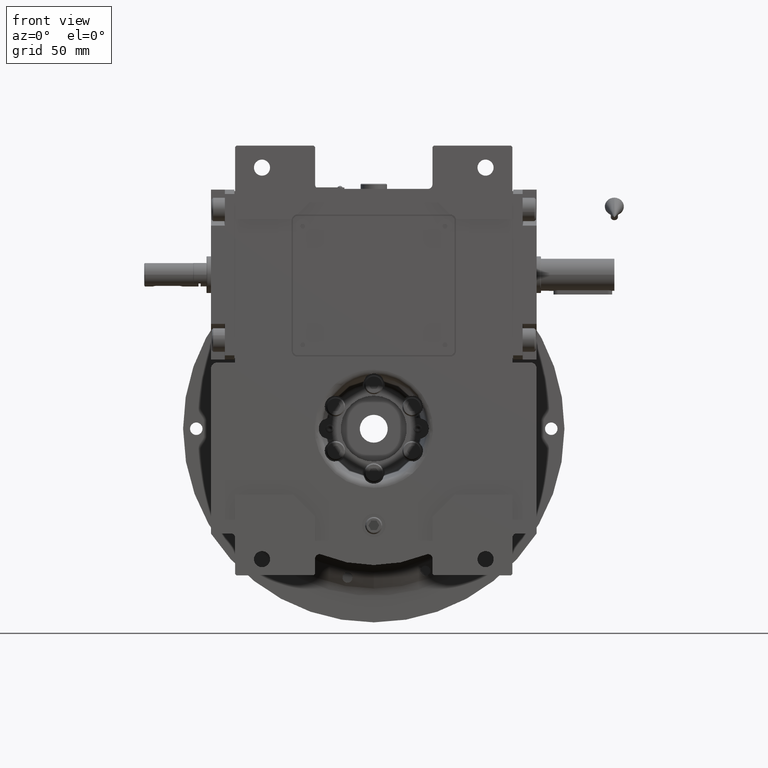
[diagram: clean part render]
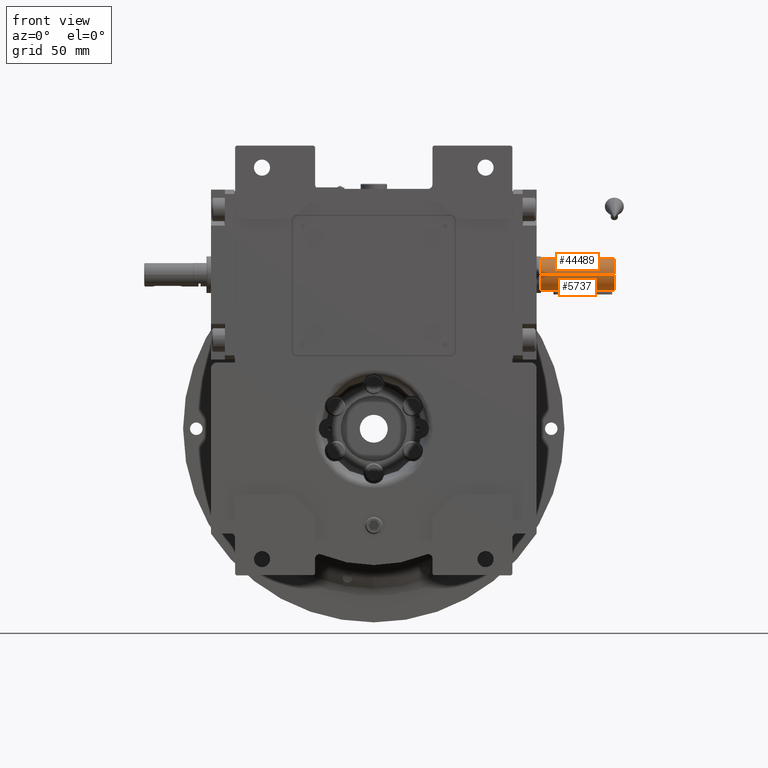
[diagram: same view with one multi-face feature highlighted, each face labeled with its STEP entity id]
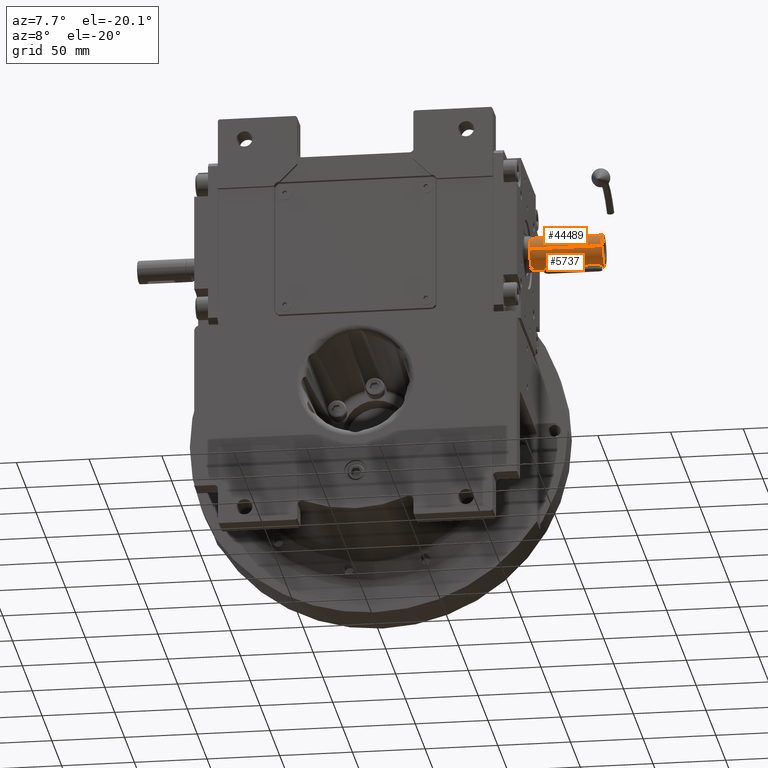
[diagram: same view with one multi-face feature highlighted, each face labeled with its STEP entity id]
A machine part, front view. The highlighted faces form ONE feature: a constant-radius fillet chain: 2 tangent blend faces with common blend radius 11 mm. The faces share edges in the B-rep.
A second angle (auxiliary view) of the same feature is appended — it is thin or edge-on in the first view.
Their STEP definitions:
[1] entity #44489 (Cylinder):
#2298 = DIRECTION ( 'NONE',  ( -1.000000000000000000, 0.000000000000000000, 0.000000000000000000 ) ) ;
#6589 = EDGE_LOOP ( 'NONE', ( #70838, #58478, #31209, #7061 ) ) ;
#7061 = ORIENTED_EDGE ( 'NONE', *, *, #19861, .T. ) ;
#7897 = CIRCLE ( 'NONE', #35294, 11.00000000000000000 ) ;
#8014 = VERTEX_POINT ( 'NONE', #32978 ) ;
#8196 = VERTEX_POINT ( 'NONE', #51825 ) ;
#8727 = CARTESIAN_POINT ( 'NONE',  ( 0.000000000000000000, -68.00000000000000000, 0.000000000000000000 ) ) ;
#10367 = DIRECTION ( 'NONE',  ( 0.000000000000000000, 1.000000000000000000, 0.000000000000000000 ) ) ;
#13191 = LINE ( 'NONE', #46834, #14872 ) ;
#14872 = VECTOR ( 'NONE', #19628, 1000.000000000000000 ) ;
#19628 = DIRECTION ( 'NONE',  ( 0.000000000000000000, -1.000000000000000000, 0.000000000000000000 ) ) ;
#19861 = EDGE_CURVE ( 'NONE', #21761, #8014, #23266, .T. ) ;
#21566 = CARTESIAN_POINT ( 'NONE',  ( -11.00000000000000000, -118.0000000000000000, 4.490371596873629988E-16 ) ) ;
#21761 = VERTEX_POINT ( 'NONE', #68394 ) ;
#22031 = CARTESIAN_POINT ( 'NONE',  ( -11.00000000000000000, -68.00000000000000000, 1.347111479062089982E-15 ) ) ;
#23266 = CIRCLE ( 'NONE', #55247, 11.00000000000000000 ) ;
#24516 = DIRECTION ( 'NONE',  ( 0.000000000000000000, -1.000000000000000000, 0.000000000000000000 ) ) ;
#25845 = AXIS2_PLACEMENT_3D ( 'NONE', #54060, #10367, #70553 ) ;
#27496 = VECTOR ( 'NONE', #50279, 1000.000000000000000 ) ;
#28107 = LINE ( 'NONE', #22031, #27496 ) ;
#31209 = ORIENTED_EDGE ( 'NONE', *, *, #40186, .F. ) ;
#32978 = CARTESIAN_POINT ( 'NONE',  ( 11.00000000000000000, -68.00000000000000000, 0.000000000000000000 ) ) ;
#34838 = VERTEX_POINT ( 'NONE', #21566 ) ;
#35294 = AXIS2_PLACEMENT_3D ( 'NONE', #40132, #62369, #45890 ) ;
#38267 = CYLINDRICAL_SURFACE ( 'NONE', #25845, 11.00000000000000000 ) ;
#40132 = CARTESIAN_POINT ( 'NONE',  ( 0.000000000000000000, -118.0000000000000000, 8.881784197001250351E-16 ) ) ;
#40186 = EDGE_CURVE ( 'NONE', #21761, #34838, #28107, .T. ) ;
#44489 = ADVANCED_FACE ( 'NONE', ( #53712 ), #38267, .T. ) ;
#45890 = DIRECTION ( 'NONE',  ( -1.000000000000000000, 0.000000000000000000, -8.074349270001138700E-17 ) ) ;
#46834 = CARTESIAN_POINT ( 'NONE',  ( 11.00000000000000000, -68.00000000000000000, 0.000000000000000000 ) ) ;
#48082 = EDGE_CURVE ( 'NONE', #34838, #8196, #7897, .T. ) ;
#50279 = DIRECTION ( 'NONE',  ( 0.000000000000000000, -1.000000000000000000, 0.000000000000000000 ) ) ;
#51825 = CARTESIAN_POINT ( 'NONE',  ( 11.00000000000000000, -118.0000000000000000, 0.000000000000000000 ) ) ;
#53712 = FACE_OUTER_BOUND ( 'NONE', #6589, .T. ) ;
#54060 = CARTESIAN_POINT ( 'NONE',  ( 0.000000000000000000, -68.00000000000000000, 0.000000000000000000 ) ) ;
#55247 = AXIS2_PLACEMENT_3D ( 'NONE', #8727, #24516, #2298 ) ;
#58478 = ORIENTED_EDGE ( 'NONE', *, *, #48082, .F. ) ;
#62369 = DIRECTION ( 'NONE',  ( 0.000000000000000000, -1.000000000000000000, 0.000000000000000000 ) ) ;
#66887 = EDGE_CURVE ( 'NONE', #8014, #8196, #13191, .T. ) ;
#68394 = CARTESIAN_POINT ( 'NONE',  ( -11.00000000000000000, -68.00000000000000000, 4.490371596873629988E-16 ) ) ;
#70553 = DIRECTION ( 'NONE',  ( 1.000000000000000000, 0.000000000000000000, 0.000000000000000000 ) ) ;
#70838 = ORIENTED_EDGE ( 'NONE', *, *, #66887, .T. ) ;
[2] entity #5737 (Cylinder):
#127 = CARTESIAN_POINT ( 'NONE',  ( -0.9835476433819195785, -76.66500159928875746, 10.95606724537883636 ) ) ;
#476 = CARTESIAN_POINT ( 'NONE',  ( 1.286031796418980910, -76.78935861155122211, 10.92437284017435317 ) ) ;
#624 = CARTESIAN_POINT ( 'NONE',  ( -2.167336347001988628, -115.5745317129838838, 10.78446060510429305 ) ) ;
#743 = EDGE_CURVE ( 'NONE', #34228, #50664, #47740, .T. ) ;
#823 = CARTESIAN_POINT ( 'NONE',  ( -2.759871036972559200, -78.32389248760773626, 10.64795842999698827 ) ) ;
#973 = CARTESIAN_POINT ( 'NONE',  ( -2.775339673019965314, -114.6390896219054980, 10.64392870139577063 ) ) ;
#1364 = EDGE_CURVE ( 'NONE', #23653, #34228, #51916, .T. ) ;
#2530 = CARTESIAN_POINT ( 'NONE',  ( 1.279005597977053377, -116.2172074953522980, 10.92607964090107586 ) ) ;
#2726 = CARTESIAN_POINT ( 'NONE',  ( -1.433641077008202869, -116.1365963392273812, 10.90581970676121415 ) ) ;
#3083 = CARTESIAN_POINT ( 'NONE',  ( -1.157453054966482764, -116.2677326878750250, 10.93890081082993326 ) ) ;
#3600 = CARTESIAN_POINT ( 'NONE',  ( 0.9111339967346910873, -116.3587381832188186, 10.96220668040095880 ) ) ;
#4396 = ORIENTED_EDGE ( 'NONE', *, *, #66887, .F. ) ;
#4435 = CARTESIAN_POINT ( 'NONE',  ( -1.429970842532874986, -76.85548033673214263, 10.90719156782525445 ) ) ;
#4580 = B_SPLINE_CURVE_WITH_KNOTS ( 'NONE', 3,
 ( #48483, #26289, #5152, #48126, #58884, #20915, #43104, #70346, #37000, #42739, #27686, #66024, #60293, #9811, #37707, #10507, #11216, #21289, #10870, #31664, #64615, #49515, #54214, #65313, #53856, #59585, #65666, #476, #27002, #54903, #43802, #5501, #15889, #48833, #22335, #70700, #54561, #59944, #32360, #64973, #38412, #127, #53509, #21635, #32009, #15550, #43452, #10158, #4435, #69984, #16230, #16595, #37362, #32717, #59241, #38051, #4783, #26642, #27345, #49175, #21973, #33060, #5840, #44165, #11908, #823, #16942, #50567, #17997, #6877, #33747, #18346 ),
 .UNSPECIFIED., .F., .F.,
 ( 4, 2, 2, 1, 1, 1, 2, 2, 2, 2, 2, 2, 2, 2, 2, 2, 1, 1, 2, 2, 2, 2, 2, 1, 1, 1, 2, 2, 2, 2, 2, 2, 2, 2, 2, 2, 1, 1, 2, 2, 4 ),
 ( 0.000000000000000000, 0.06250000000004843348, 0.09375000000007266410, 0.1093750000000847794, 0.1171875000000887485, 0.1210937500000907607, 0.1230468750000917599, 0.1250000000000927591, 0.1875000000000968392, 0.2187500000001006972, 0.2343750000001040279, 0.2421875000001056377, 0.2500000000001072475, 0.3125000000001200151, 0.3437500000001252887, 0.3593750000001278977, 0.3671875000001280642, 0.3710937500001281752, 0.3730468750001282863, 0.3750000000001283418, 0.5000000000001070255, 0.5625000000000963674, 0.5937500000000905942, 0.6093750000000877076, 0.6171875000000870415, 0.6210937500000873746, 0.6230468750000875966, 0.6250000000000877076, 0.6875000000000607292, 0.7187500000000471845, 0.7343750000000404121, 0.7421875000000381917, 0.7500000000000360822, 0.8125000000000102141, 0.8437499999999973355, 0.8593749999999884537, 0.8671874999999867883, 0.8710937499999887867, 0.8730468749999898970, 0.8749999999999908962, 1.000000000000000000 ),
 .UNSPECIFIED. ) ;
#4783 = CARTESIAN_POINT ( 'NONE',  ( -2.097778273838006857, -77.35513985681002680, 10.79818604398538007 ) ) ;
#5152 = CARTESIAN_POINT ( 'NONE',  ( 2.979326592047951916, -79.09712189806013782, 10.59077590235676603 ) ) ;
#5501 = CARTESIAN_POINT ( 'NONE',  ( 1.167542114975367973, -76.73651225059066405, 10.93782164777859300 ) ) ;
#5737 = ADVANCED_FACE ( 'NONE', ( #16662, #17715 ), #23087, .T. ) ;
#5840 = CARTESIAN_POINT ( 'NONE',  ( -2.715324926754027146, -78.22394794041350963, 10.65964344122202512 ) ) ;
#5906 = DIRECTION ( 'NONE',  ( 0.000000000000000000, 1.000000000000000000, 0.000000000000000000 ) ) ;
#5944 = CARTESIAN_POINT ( 'NONE',  ( -3.000000000000000000, -113.5000000000000000, 10.58300524425835931 ) ) ;
#6794 = VECTOR ( 'NONE', #9993, 1000.000000000000000 ) ;
#6877 = CARTESIAN_POINT ( 'NONE',  ( -2.916727202267110908, -78.70149496793985122, 10.60716793333593699 ) ) ;
#7033 = CARTESIAN_POINT ( 'NONE',  ( -2.722192511089804423, -114.7671779114493518, 10.65774369693591517 ) ) ;
#7521 = DIRECTION ( 'NONE',  ( 0.000000000000000000, -1.000000000000000000, 0.000000000000000000 ) ) ;
#7745 = CARTESIAN_POINT ( 'NONE',  ( -1.208541879012571041, -116.2459060391745425, 10.93334476567098790 ) ) ;
#8014 = VERTEX_POINT ( 'NONE', #32978 ) ;
#8196 = VERTEX_POINT ( 'NONE', #51825 ) ;
#8211 = EDGE_CURVE ( 'NONE', #8014, #21761, #46124, .T. ) ;
#8616 = CARTESIAN_POINT ( 'NONE',  ( -4.840907154027585568E-08, -116.5000000000000000, 11.00000000000001954 ) ) ;
#8973 = CARTESIAN_POINT ( 'NONE',  ( 2.916727034310364175, -114.2985054512027716, 10.60716798335959865 ) ) ;
#9315 = CARTESIAN_POINT ( 'NONE',  ( 2.308734362824088393, -115.4339244520514853, 10.75673226671180949 ) ) ;
#9686 = CARTESIAN_POINT ( 'NONE',  ( 0.3790610715423035626, -116.4824670046868818, 10.99496089072016325 ) ) ;
#9811 = CARTESIAN_POINT ( 'NONE',  ( 2.653232577745092247, -78.08621952457062321, 10.67643291959783092 ) ) ;
#9993 = DIRECTION ( 'NONE',  ( 0.000000000000000000, -1.000000000000000000, 0.000000000000000000 ) ) ;
#10158 = CARTESIAN_POINT ( 'NONE',  ( -1.279005615026072684, -76.78279251499958491, 10.92607964108015217 ) ) ;
#10278 = VERTEX_POINT ( 'NONE', #25605 ) ;
#10507 = CARTESIAN_POINT ( 'NONE',  ( 2.438082008746869533, -77.74812880550851446, 10.72743682466659187 ) ) ;
#10870 = CARTESIAN_POINT ( 'NONE',  ( 2.232376612811828753, -77.49564097281739805, 10.77130177557134161 ) ) ;
#11216 = CARTESIAN_POINT ( 'NONE',  ( 2.331831195179120186, -77.61164425542865786, 10.75053737701510848 ) ) ;
#11908 = CARTESIAN_POINT ( 'NONE',  ( -2.748365602923775963, -78.29709372879079865, 10.65097210258034188 ) ) ;
#12752 = CARTESIAN_POINT ( 'NONE',  ( -2.779840307740095273, -114.6280617584312438, 10.64275981934178006 ) ) ;
#13191 = LINE ( 'NONE', #46834, #14872 ) ;
#13467 = CARTESIAN_POINT ( 'NONE',  ( -1.234039042478001891, -116.2345038436760518, 10.93043900566913251 ) ) ;
#14345 = CARTESIAN_POINT ( 'NONE',  ( 2.698907300593001768, -114.8105448978638066, 10.66393860694360463 ) ) ;
#14704 = CARTESIAN_POINT ( 'NONE',  ( 2.009136490928657981, -115.7280624773660946, 10.81489992548164203 ) ) ;
#14872 = VECTOR ( 'NONE', #19628, 1000.000000000000000 ) ;
#15051 = CARTESIAN_POINT ( 'NONE',  ( 2.076400096479104285, -115.6655274302379013, 10.80229491738677794 ) ) ;
#15295 = ORIENTED_EDGE ( 'NONE', *, *, #64296, .T. ) ;
#15380 = LINE ( 'NONE', #37195, #6794 ) ;
#15550 = CARTESIAN_POINT ( 'NONE',  ( -1.139534090974976488, -76.72484166894791713, 10.94078570188626998 ) ) ;
#15889 = CARTESIAN_POINT ( 'NONE',  ( 1.159478943271860629, -76.73311949815573030, 10.93868413228515912 ) ) ;
#16230 = CARTESIAN_POINT ( 'NONE',  ( -1.765016550553660579, -77.07156066506719583, 10.85718210521197058 ) ) ;
#16595 = CARTESIAN_POINT ( 'NONE',  ( -1.897425700790427827, -77.17558050972412786, 10.83486050620181196 ) ) ;
#16662 = FACE_BOUND ( 'NONE', #65453, .T. ) ;
#16739 = CARTESIAN_POINT ( 'NONE',  ( -3.000000000000000000, -113.5000000000000000, 10.58300524425835931 ) ) ;
#16942 = CARTESIAN_POINT ( 'NONE',  ( -2.764613558908707969, -78.33512742314236732, 10.64672004227437441 ) ) ;
#17082 = CARTESIAN_POINT ( 'NONE',  ( -2.920736496382354996, -114.1920785685286717, 10.60630211981214366 ) ) ;
#17715 = FACE_OUTER_BOUND ( 'NONE', #57316, .T. ) ;
#17997 = CARTESIAN_POINT ( 'NONE',  ( -2.768513115839152938, -78.34441767696033310, 10.64570307403962168 ) ) ;
#18087 = ORIENTED_EDGE ( 'NONE', *, *, #40186, .T. ) ;
#18346 = CARTESIAN_POINT ( 'NONE',  ( -3.000000000000000000, -79.50000000000000000, 10.58300524425835931 ) ) ;
#19020 = CARTESIAN_POINT ( 'NONE',  ( 3.000000000000000000, -113.5000000000000000, 10.58300524425835931 ) ) ;
#19431 = ORIENTED_EDGE ( 'NONE', *, *, #743, .F. ) ;
#19628 = DIRECTION ( 'NONE',  ( 0.000000000000000000, -1.000000000000000000, 0.000000000000000000 ) ) ;
#19908 = ORIENTED_EDGE ( 'NONE', *, *, #8211, .T. ) ;
#20449 = CARTESIAN_POINT ( 'NONE',  ( 2.644564663183437414, -114.9187289833812144, 10.67795877401421301 ) ) ;
#20915 = CARTESIAN_POINT ( 'NONE',  ( 2.854075889748040051, -78.57447739851247093, 10.62355101183468342 ) ) ;
#21121 = CARTESIAN_POINT ( 'NONE',  ( -3.000000000000000000, -79.50000000000000000, 10.58300524425835931 ) ) ;
#21289 = CARTESIAN_POINT ( 'NONE',  ( 2.293772752492979183, -77.56545913327460084, 10.75861604569773355 ) ) ;
#21566 = CARTESIAN_POINT ( 'NONE',  ( -11.00000000000000000, -118.0000000000000000, 4.490371596873629988E-16 ) ) ;
#21635 = CARTESIAN_POINT ( 'NONE',  ( -1.109627391464078183, -76.71270413328909399, 10.94387156038238373 ) ) ;
#21761 = VERTEX_POINT ( 'NONE', #68394 ) ;
#21973 = CARTESIAN_POINT ( 'NONE',  ( -2.644564621108157265, -78.08127093686654518, 10.67795878946515309 ) ) ;
#22031 = CARTESIAN_POINT ( 'NONE',  ( -11.00000000000000000, -68.00000000000000000, 1.347111479062089982E-15 ) ) ;
#22121 = CARTESIAN_POINT ( 'NONE',  ( -2.498350178176957925, -115.1636859597702056, 10.71355040379549273 ) ) ;
#22335 = CARTESIAN_POINT ( 'NONE',  ( 0.7694190409319182633, -76.57097496801954151, 10.97983838684685587 ) ) ;
#22484 = CARTESIAN_POINT ( 'NONE',  ( -2.143602493980430346, -115.5990403563741040, 10.78918135663478850 ) ) ;
#23087 = CYLINDRICAL_SURFACE ( 'NONE', #39663, 11.00000000000000000 ) ;
#23172 = CARTESIAN_POINT ( 'NONE',  ( -2.896620451319745548, -114.2867369626761729, 10.61255511890285774 ) ) ;
#23653 = VERTEX_POINT ( 'NONE', #5944 ) ;
#24401 = CARTESIAN_POINT ( 'NONE',  ( 2.748365601800665914, -114.7029062735035723, 10.65097209834109648 ) ) ;
#24601 = CARTESIAN_POINT ( 'NONE',  ( -1.512920531882189223, -116.0924210061373429, 10.89501526675129206 ) ) ;
#24761 = CARTESIAN_POINT ( 'NONE',  ( 1.109632560325167328, -116.2872937962976323, 10.94387101518921313 ) ) ;
#25112 = CARTESIAN_POINT ( 'NONE',  ( 0.9835667666182972280, -116.3349916050398463, 10.95606526596610486 ) ) ;
#25238 = DIRECTION ( 'NONE',  ( 0.000000000000000000, -1.000000000000000000, 0.000000000000000000 ) ) ;
#25288 = CARTESIAN_POINT ( 'NONE',  ( -0.7693699750026733453, -116.4290454329742488, 10.97984356645938675 ) ) ;
#25605 = CARTESIAN_POINT ( 'NONE',  ( 3.000000000000000000, -79.50000000000000000, 10.58300524425835931 ) ) ;
#25825 = CARTESIAN_POINT ( 'NONE',  ( 1.139535554658679617, -116.2751577281618438, 10.94078554495631828 ) ) ;
#26289 = CARTESIAN_POINT ( 'NONE',  ( 3.000000000000000444, -79.29694141520383255, 10.58473540700584969 ) ) ;
#26642 = CARTESIAN_POINT ( 'NONE',  ( -2.308734339584116224, -77.56607553631236840, 10.75673227047044556 ) ) ;
#27002 = CARTESIAN_POINT ( 'NONE',  ( 1.234039021328239061, -76.76549614676041244, 10.93043900635686683 ) ) ;
#27345 = CARTESIAN_POINT ( 'NONE',  ( -2.446669362798275404, -77.75293751087284022, 10.72593588417803367 ) ) ;
#27496 = VECTOR ( 'NONE', #50279, 1000.000000000000000 ) ;
#27609 = CARTESIAN_POINT ( 'NONE',  ( 3.000000000000000000, -113.5000000000000000, 10.58300524425835931 ) ) ;
#27686 = CARTESIAN_POINT ( 'NONE',  ( 2.775339659217308519, -78.36091034448601533, 10.64392870297110427 ) ) ;
#27832 = CARTESIAN_POINT ( 'NONE',  ( -2.232376625041674334, -115.5043590134487630, 10.77130177311085646 ) ) ;
#28107 = LINE ( 'NONE', #22031, #27496 ) ;
#28809 = DIRECTION ( 'NONE',  ( 1.000000000000000000, 0.000000000000000000, 0.000000000000000000 ) ) ;
#29600 = CARTESIAN_POINT ( 'NONE',  ( -1.179703459327892334, -116.2583394675193915, 10.93651200414502433 ) ) ;
#29944 = CARTESIAN_POINT ( 'NONE',  ( -1.159478978466532251, -116.2668804870942409, 10.93868413037302822 ) ) ;
#30309 = CARTESIAN_POINT ( 'NONE',  ( -4.840907154027585568E-08, -116.5000000000000000, 11.00000000000001954 ) ) ;
#31166 = CARTESIAN_POINT ( 'NONE',  ( 2.715324943672550173, -114.7760520230643522, 10.65964343166032435 ) ) ;
#31664 = CARTESIAN_POINT ( 'NONE',  ( 2.211193340447836331, -77.47227894400906223, 10.77562497333749292 ) ) ;
#32009 = CARTESIAN_POINT ( 'NONE',  ( -1.127575440310183197, -76.71996127125700582, 10.94202595200816930 ) ) ;
#32360 = CARTESIAN_POINT ( 'NONE',  ( -0.6690474891745358255, -76.57389770467740675, 10.97984744493158971 ) ) ;
#32717 = CARTESIAN_POINT ( 'NONE',  ( -2.009136536754128066, -77.27193756388574286, 10.81489991634851755 ) ) ;
#32978 = CARTESIAN_POINT ( 'NONE',  ( 11.00000000000000000, -68.00000000000000000, 0.000000000000000000 ) ) ;
#33060 = CARTESIAN_POINT ( 'NONE',  ( -2.698907276580517323, -78.18945505232753135, 10.66393861832714407 ) ) ;
#33200 = CARTESIAN_POINT ( 'NONE',  ( -2.331831185041139509, -115.3883557567792337, 10.75053737960851841 ) ) ;
#33747 = CARTESIAN_POINT ( 'NONE',  ( -3.000000000000000444, -79.09379826886220144, 10.58646627284835695 ) ) ;
#34115 = ORIENTED_EDGE ( 'NONE', *, *, #61680, .F. ) ;
#34228 = VERTEX_POINT ( 'NONE', #63911 ) ;
#34838 = VERTEX_POINT ( 'NONE', #21566 ) ;
#35301 = CARTESIAN_POINT ( 'NONE',  ( -1.286031809961648342, -116.2106413819468287, 10.92437284010943621 ) ) ;
#36173 = CARTESIAN_POINT ( 'NONE',  ( 2.999999999999999112, -113.9062021680413608, 10.58646632254273179 ) ) ;
#36526 = CARTESIAN_POINT ( 'NONE',  ( 2.097778197096893837, -115.6448602184734682, 10.79818605929137121 ) ) ;
#37000 = CARTESIAN_POINT ( 'NONE',  ( 2.786545491918542172, -78.38850868690018103, 10.64101912818404116 ) ) ;
#37195 = CARTESIAN_POINT ( 'NONE',  ( 3.000000000000000000, -79.50000000000000000, 10.58300524425835931 ) ) ;
#37362 = CARTESIAN_POINT ( 'NONE',  ( -1.942007649469696728, -77.21260548667787305, 10.82708015886221631 ) ) ;
#37707 = CARTESIAN_POINT ( 'NONE',  ( 2.498350210409196581, -77.83631408846900968, 10.71355039470004833 ) ) ;
#38051 = CARTESIAN_POINT ( 'NONE',  ( -2.076400153897401957, -77.33447262473094952, 10.80229490591455566 ) ) ;
#38412 = CARTESIAN_POINT ( 'NONE',  ( -0.9111087367171346596, -76.64125370730339171, 10.96220926695046316 ) ) ;
#39663 = AXIS2_PLACEMENT_3D ( 'NONE', #44920, #5906, #28809 ) ;
#40186 = EDGE_CURVE ( 'NONE', #21761, #34838, #28107, .T. ) ;
#41176 = CARTESIAN_POINT ( 'NONE',  ( 1.127578398133209925, -116.2800375271875879, 10.94202563825566799 ) ) ;
#41907 = CARTESIAN_POINT ( 'NONE',  ( 1.942007614415676597, -115.7873945428070073, 10.82708016586908428 ) ) ;
#42041 = CARTESIAN_POINT ( 'NONE',  ( 0.000000000000000000, -118.0000000000000000, 0.000000000000000000 ) ) ;
#42123 = DIRECTION ( 'NONE',  ( 0.000000000000000000, -1.000000000000000000, 0.000000000000000000 ) ) ;
#42258 = CARTESIAN_POINT ( 'NONE',  ( 2.759871028151341665, -114.6761075330201436, 10.64795842826935690 ) ) ;
#42739 = CARTESIAN_POINT ( 'NONE',  ( 2.779840291039599176, -78.37193820043567882, 10.64275982188526193 ) ) ;
#43104 = CARTESIAN_POINT ( 'NONE',  ( 2.831211728712034859, -78.50588394405968984, 10.62945304072542818 ) ) ;
#43452 = CARTESIAN_POINT ( 'NONE',  ( -1.147497411269729817, -76.72812909463446829, 10.93995103007684477 ) ) ;
#43802 = CARTESIAN_POINT ( 'NONE',  ( 1.179703428401841947, -76.74166051924399312, 10.93651200567690118 ) ) ;
#44165 = CARTESIAN_POINT ( 'NONE',  ( -2.737723593628784702, -78.27313647700935917, 10.65376799547567899 ) ) ;
#44511 = CARTESIAN_POINT ( 'NONE',  ( -3.000000000000000000, -79.50000000000000000, 10.58300524425835931 ) ) ;
#44649 = CARTESIAN_POINT ( 'NONE',  ( -2.979326620797968506, -113.9028778870461878, 10.59077587802651266 ) ) ;
#44920 = CARTESIAN_POINT ( 'NONE',  ( 0.000000000000000000, -68.00000000000000000, 0.000000000000000000 ) ) ;
#46124 = CIRCLE ( 'NONE', #55272, 11.00000000000000000 ) ;
#46229 = CARTESIAN_POINT ( 'NONE',  ( 2.767734096340898287, -114.6574386473348142, 10.64590626981428123 ) ) ;
#46582 = CARTESIAN_POINT ( 'NONE',  ( 2.446669414197559345, -115.2470624180613896, 10.72593587092957002 ) ) ;
#46723 = CIRCLE ( 'NONE', #57050, 11.00000000000000000 ) ;
#46834 = CARTESIAN_POINT ( 'NONE',  ( 11.00000000000000000, -68.00000000000000000, 0.000000000000000000 ) ) ;
#46930 = CARTESIAN_POINT ( 'NONE',  ( 2.031554872715585436, -115.7076528737364356, 10.81075489181101190 ) ) ;
#47060 = DIRECTION ( 'NONE',  ( 1.000000000000000000, 0.000000000000000000, 0.000000000000000000 ) ) ;
#47185 = ORIENTED_EDGE ( 'NONE', *, *, #1364, .F. ) ;
#47289 = CARTESIAN_POINT ( 'NONE',  ( 0.7660654482596962467, -116.4022991523579833, 10.97354467628068342 ) ) ;
#47662 = CARTESIAN_POINT ( 'NONE',  ( 1.067691574909894747, -116.3037818627402658, 10.94807355359255041 ) ) ;
#47740 = B_SPLINE_CURVE_WITH_KNOTS ( 'NONE', 3,
 ( #8616, #53025, #9686, #58398, #47289, #3600, #25112, #47662, #24761, #41176, #25825, #63038, #2530, #69158, #68085, #62696, #57689, #41907, #14704, #46930, #15051, #36526, #9315, #46582, #63424, #20449, #14345, #31166, #51604, #24401, #42258, #57318, #46229, #64131, #8973, #36173, #19020 ),
 .UNSPECIFIED., .F., .F.,
 ( 4, 2, 2, 1, 1, 1, 2, 2, 2, 2, 2, 2, 2, 2, 2, 2, 1, 1, 2, 2, 4 ),
 ( 0.5000000000000000000, 0.5624999999999263922, 0.5937499999998900879, 0.6093749999998725464, 0.6171874999998629985, 0.6210937499998582245, 0.6230468749998565592, 0.6249999999998550049, 0.6874999999998634426, 0.7187499999998676614, 0.7343749999998698819, 0.7421874999998709921, 0.7499999999998721023, 0.8124999999998813172, 0.8437499999998840927, 0.8593749999998877565, 0.8671874999998869793, 0.8710937499998894218, 0.8730468749998938627, 0.8749999999998980815, 1.000000000000000000 ),
 .UNSPECIFIED. ) ;
#48126 = CARTESIAN_POINT ( 'NONE',  ( 2.920736444934422860, -78.80792121401641737, 10.60630214428830165 ) ) ;
#48483 = CARTESIAN_POINT ( 'NONE',  ( 3.000000000000000000, -79.50000000000000000, 10.58300524425835931 ) ) ;
#48833 = CARTESIAN_POINT ( 'NONE',  ( 1.157452250761982659, -76.73226697775149319, 10.93890089386556141 ) ) ;
#49175 = CARTESIAN_POINT ( 'NONE',  ( -2.601559308220382949, -78.00283810369263904, 10.68881842332071130 ) ) ;
#49515 = CARTESIAN_POINT ( 'NONE',  ( 2.143602447687647850, -77.40095959642094670, 10.78918136595091504 ) ) ;
#49669 = CARTESIAN_POINT ( 'NONE',  ( -2.211193358110584484, -115.5277210365973843, 10.77562496973100714 ) ) ;
#49708 = VERTEX_POINT ( 'NONE', #21121 ) ;
#50279 = DIRECTION ( 'NONE',  ( 0.000000000000000000, -1.000000000000000000, 0.000000000000000000 ) ) ;
#50567 = CARTESIAN_POINT ( 'NONE',  ( -2.767734110829679128, -78.34256138730096097, 10.64590626962412756 ) ) ;
#50664 = VERTEX_POINT ( 'NONE', #27609 ) ;
#51100 = CARTESIAN_POINT ( 'NONE',  ( -2.772312159647689178, -114.6464296684535213, 10.64471541497792018 ) ) ;
#51150 = ORIENTED_EDGE ( 'NONE', *, *, #64082, .F. ) ;
#51604 = CARTESIAN_POINT ( 'NONE',  ( 2.737723598718669660, -114.7268635114971858, 10.65376798934577884 ) ) ;
#51825 = CARTESIAN_POINT ( 'NONE',  ( 11.00000000000000000, -118.0000000000000000, 0.000000000000000000 ) ) ;
#51916 = B_SPLINE_CURVE_WITH_KNOTS ( 'NONE', 3,
 ( #16739, #61827, #44649, #17082, #23172, #66872, #61486, #60778, #56096, #12752, #973, #51100, #7033, #66499, #22121, #65821, #33200, #55038, #27832, #49669, #624, #22484, #66168, #52150, #24601, #2726, #62533, #35301, #13467, #7745, #29600, #62179, #29944, #3083, #25288, #57156, #30309 ),
 .UNSPECIFIED., .F., .F.,
 ( 4, 2, 2, 1, 1, 1, 2, 2, 2, 2, 2, 2, 2, 2, 2, 2, 1, 1, 2, 2, 4 ),
 ( 0.000000000000000000, 0.06249999999990442368, 0.09374999999985876575, 0.1093749999998359368, 0.1171874999998245431, 0.1210937499998209349, 0.1230468749998211986, 0.1249999999998214761, 0.1874999999998392120, 0.2187499999998480937, 0.2343749999998524791, 0.2421874999998560318, 0.2499999999998596123, 0.3124999999998929190, 0.3437499999999084066, 0.3593749999999161782, 0.3671874999999200639, 0.3710937499999219513, 0.3730468749999240607, 0.3749999999999261702, 0.5000000000000000000 ),
 .UNSPECIFIED. ) ;
#51943 = ORIENTED_EDGE ( 'NONE', *, *, #63746, .F. ) ;
#52150 = CARTESIAN_POINT ( 'NONE',  ( -1.761503380922704087, -115.9362690069877431, 10.85852761782603260 ) ) ;
#53025 = CARTESIAN_POINT ( 'NONE',  ( 0.1869928963673160860, -116.5000000000000000, 11.00000000000003908 ) ) ;
#53509 = CARTESIAN_POINT ( 'NONE',  ( -1.067681461186142045, -76.69621423876721167, 10.94807461226178091 ) ) ;
#53856 = CARTESIAN_POINT ( 'NONE',  ( 1.512920533461043826, -76.90757899485137727, 10.89501526605509341 ) ) ;
#54214 = CARTESIAN_POINT ( 'NONE',  ( 1.942138428051018995, -77.19951509893311936, 10.82877008393307428 ) ) ;
#54561 = CARTESIAN_POINT ( 'NONE',  ( -0.1869662585111145359, -76.49999999283609498, 11.00000258885300397 ) ) ;
#54903 = CARTESIAN_POINT ( 'NONE',  ( 1.208541853669382604, -76.75409394963317311, 10.93334476671338962 ) ) ;
#55038 = CARTESIAN_POINT ( 'NONE',  ( -2.293772750023006068, -115.4345408691869039, 10.75861604644986969 ) ) ;
#55272 = AXIS2_PLACEMENT_3D ( 'NONE', #68303, #42123, #58603 ) ;
#56096 = CARTESIAN_POINT ( 'NONE',  ( -2.786545512822358184, -114.6114912608402250, 10.64101912421191365 ) ) ;
#57050 = AXIS2_PLACEMENT_3D ( 'NONE', #42041, #25238, #47060 ) ;
#57156 = CARTESIAN_POINT ( 'NONE',  ( -0.3739857927346306732, -116.5000000000000142, 11.00000000000004619 ) ) ;
#57316 = EDGE_LOOP ( 'NONE', ( #18087, #51943, #4396, #19908 ) ) ;
#57318 = CARTESIAN_POINT ( 'NONE',  ( 2.764613546698508451, -114.6648726058257637, 10.64672004168868469 ) ) ;
#57689 = CARTESIAN_POINT ( 'NONE',  ( 1.897425672200243385, -115.8244195134346199, 10.83486051196143052 ) ) ;
#58398 = CARTESIAN_POINT ( 'NONE',  ( 0.6690863468409498083, -116.4260934098166018, 10.97984356288053220 ) ) ;
#58603 = DIRECTION ( 'NONE',  ( 1.000000000000000000, 0.000000000000000000, 0.000000000000000000 ) ) ;
#58884 = CARTESIAN_POINT ( 'NONE',  ( 2.896620395667539150, -78.71326283637803556, 10.61255514141633682 ) ) ;
#59241 = CARTESIAN_POINT ( 'NONE',  ( -2.031554922310009559, -77.29234717181735448, 10.81075488192655776 ) ) ;
#59585 = CARTESIAN_POINT ( 'NONE',  ( 1.433641076574922346, -76.86340366032534632, 10.90581970597268580 ) ) ;
#59944 = CARTESIAN_POINT ( 'NONE',  ( -0.3790214207102519106, -76.51752795411343300, 10.99496477369260639 ) ) ;
#60293 = CARTESIAN_POINT ( 'NONE',  ( 2.722192524068816954, -78.23282212291368864, 10.65774368925955962 ) ) ;
#60778 = CARTESIAN_POINT ( 'NONE',  ( -2.801868851850118247, -114.5726274728257152, 10.63704589790004462 ) ) ;
#61486 = CARTESIAN_POINT ( 'NONE',  ( -2.831211772329510268, -114.4941159338586232, 10.62945302790765290 ) ) ;
#61680 = EDGE_CURVE ( 'NONE', #10278, #49708, #4580, .T. ) ;
#61827 = CARTESIAN_POINT ( 'NONE',  ( -2.999999999999999556, -113.7030584421398913, 10.58473539081809989 ) ) ;
#62179 = CARTESIAN_POINT ( 'NONE',  ( -1.167542148442728633, -116.2634877352682992, 10.93782164602072271 ) ) ;
#62533 = CARTESIAN_POINT ( 'NONE',  ( -1.322026388172261813, -116.1933228505703397, 10.91998920232835069 ) ) ;
#62696 = CARTESIAN_POINT ( 'NONE',  ( 1.765016538473229479, -115.9284393430261417, 10.85718210774066605 ) ) ;
#63038 = CARTESIAN_POINT ( 'NONE',  ( 1.147497349431892077, -116.2718709309673386, 10.93995103388339807 ) ) ;
#63424 = CARTESIAN_POINT ( 'NONE',  ( 2.601559358105788089, -114.9971618098907840, 10.68881840702229624 ) ) ;
#63746 = EDGE_CURVE ( 'NONE', #8196, #34838, #46723, .T. ) ;
#63911 = CARTESIAN_POINT ( 'NONE',  ( -4.840907154027585568E-08, -116.5000000000000000, 11.00000000000001954 ) ) ;
#64082 = EDGE_CURVE ( 'NONE', #49708, #23653, #68047, .T. ) ;
#64131 = CARTESIAN_POINT ( 'NONE',  ( 2.768513101405126964, -114.6555823575875337, 10.64570307426129503 ) ) ;
#64296 = EDGE_CURVE ( 'NONE', #10278, #50664, #15380, .T. ) ;
#64615 = CARTESIAN_POINT ( 'NONE',  ( 2.167336317328112827, -77.42546825588507886, 10.78446061115301546 ) ) ;
#64973 = CARTESIAN_POINT ( 'NONE',  ( -0.7660301964638869254, -76.59769131162437361, 10.97354823434118209 ) ) ;
#65313 = CARTESIAN_POINT ( 'NONE',  ( 1.761503377968313799, -77.06373099116254366, 10.85852761879096917 ) ) ;
#65453 = EDGE_LOOP ( 'NONE', ( #15295, #19431, #47185, #51150, #34115 ) ) ;
#65666 = CARTESIAN_POINT ( 'NONE',  ( 1.322026378660299262, -76.80667714470888541, 10.91998920209339019 ) ) ;
#65821 = CARTESIAN_POINT ( 'NONE',  ( -2.438081981027945933, -115.2518712317274634, 10.72743683188237895 ) ) ;
#66024 = CARTESIAN_POINT ( 'NONE',  ( 2.772312148145445576, -78.35357030373859288, 10.64471541581965219 ) ) ;
#66168 = CARTESIAN_POINT ( 'NONE',  ( -1.942138448681961060, -115.8004848877714323, 10.82877008001520736 ) ) ;
#66276 = VECTOR ( 'NONE', #7521, 1000.000000000000000 ) ;
#66499 = CARTESIAN_POINT ( 'NONE',  ( -2.653232546180519069, -114.9137805338954621, 10.67643293072644184 ) ) ;
#66872 = CARTESIAN_POINT ( 'NONE',  ( -2.854075939418586394, -114.4255224491567304, 10.62355099528218183 ) ) ;
#66887 = EDGE_CURVE ( 'NONE', #8014, #8196, #13191, .T. ) ;
#68047 = LINE ( 'NONE', #44511, #66276 ) ;
#68085 = CARTESIAN_POINT ( 'NONE',  ( 1.678559002725074301, -115.9883759540916230, 10.87070391492971488 ) ) ;
#68303 = CARTESIAN_POINT ( 'NONE',  ( 0.000000000000000000, -68.00000000000000000, 0.000000000000000000 ) ) ;
#68394 = CARTESIAN_POINT ( 'NONE',  ( -11.00000000000000000, -68.00000000000000000, 4.490371596873629988E-16 ) ) ;
#69158 = CARTESIAN_POINT ( 'NONE',  ( 1.429970843166185057, -116.1445196625885217, 10.90719156650557586 ) ) ;
#69984 = CARTESIAN_POINT ( 'NONE',  ( -1.678559007684366389, -77.01162404916422588, 10.87070391387391943 ) ) ;
#70346 = CARTESIAN_POINT ( 'NONE',  ( 2.801868822121504010, -78.42737245009011815, 10.63704590504070957 ) ) ;
#70700 = CARTESIAN_POINT ( 'NONE',  ( 0.3739328618712835506, -76.50000001432782426, 10.99999482229338632 ) ) ;